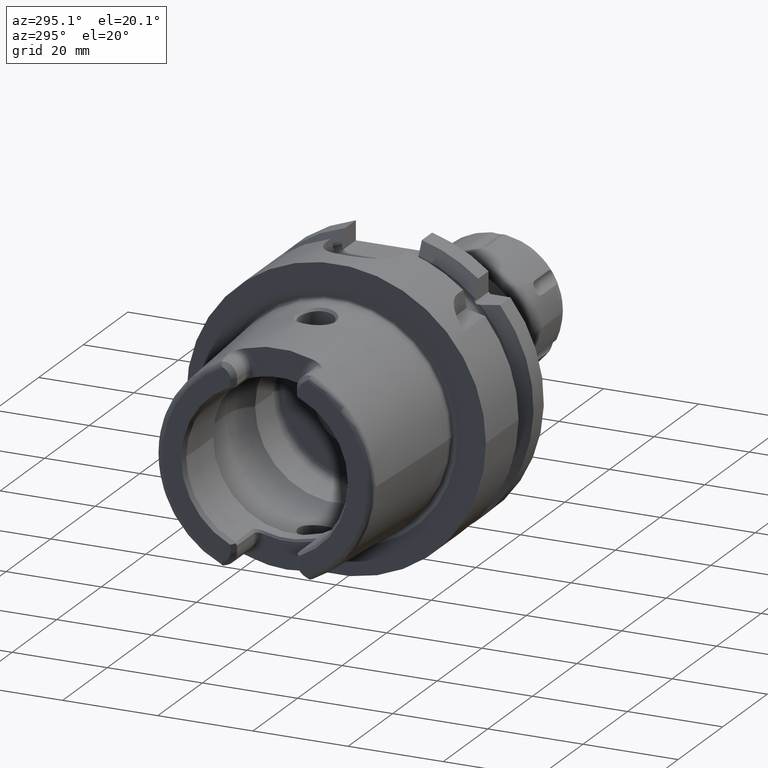
[diagram: clean part render]
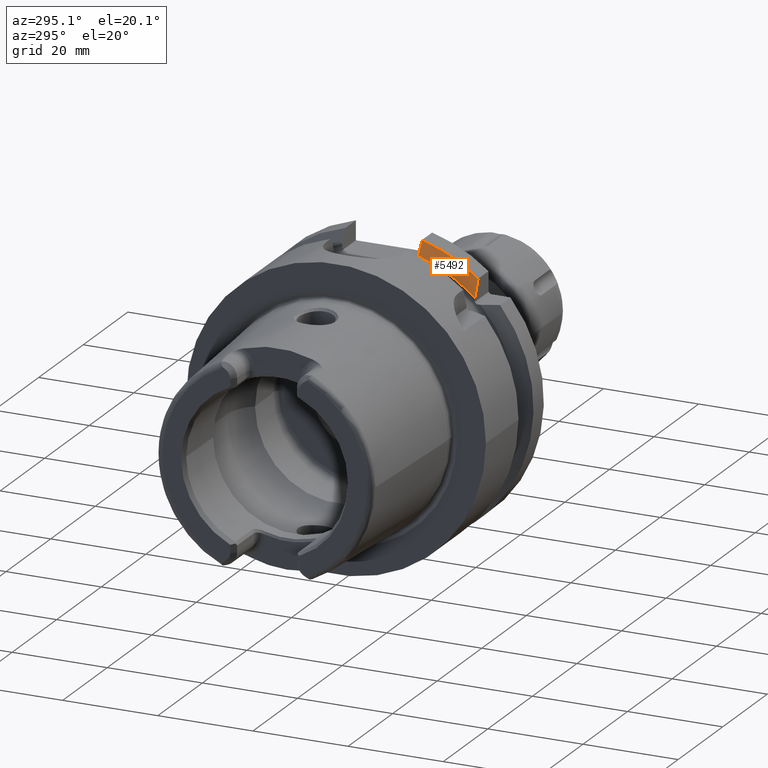
[diagram: same view with one face highlighted and labeled with its STEP entity id]
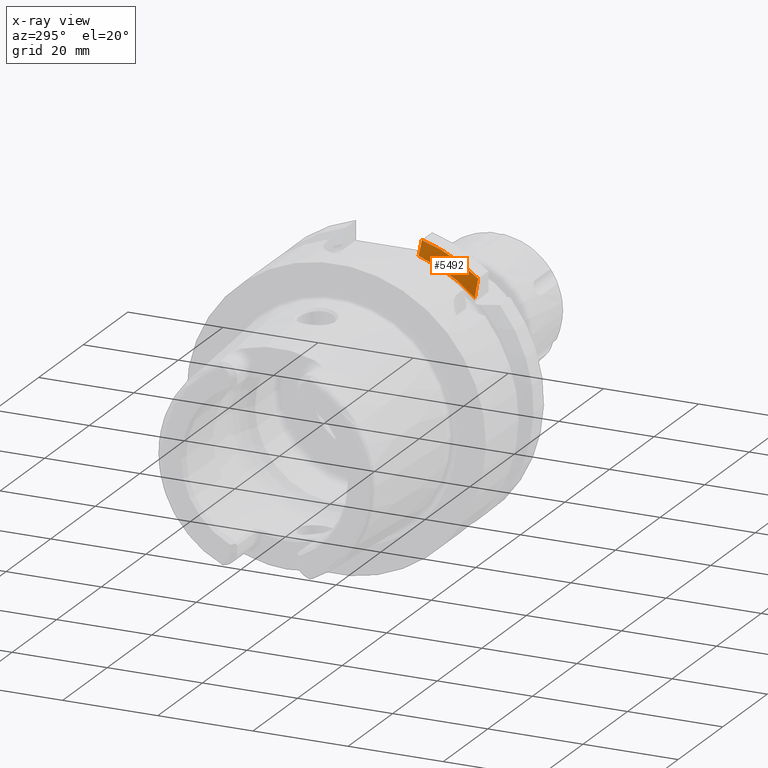
[diagram: x-ray of the same camera — body ghosted, the highlighted face saturated]
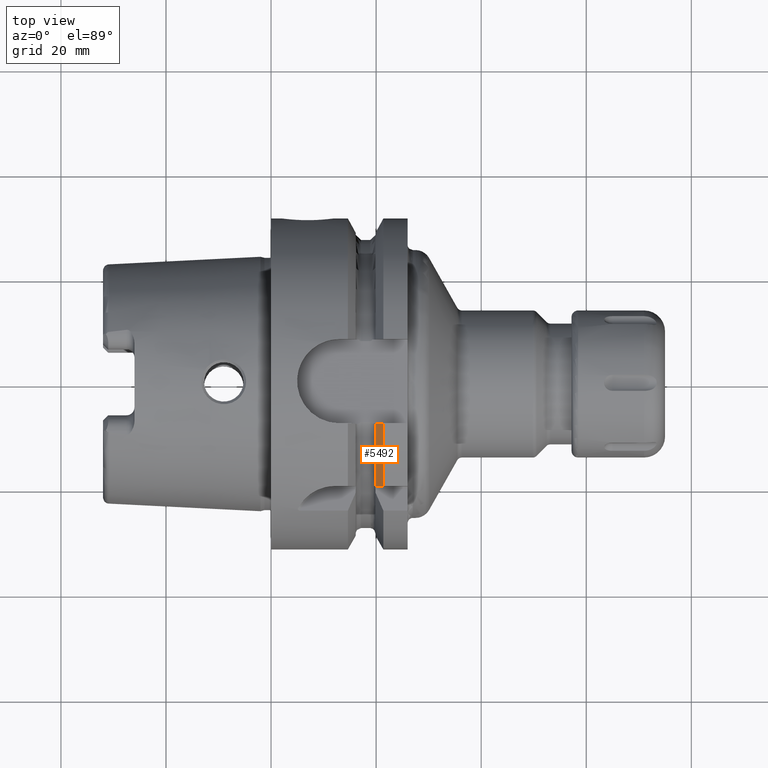
[diagram: same view with one face highlighted and labeled with its STEP entity id]
A machine part, auxiliary view. The second image highlights one B-rep face of the part: STEP entity #5492.
The next image is the same camera in x-ray: the body ghosted, the highlighted face saturated — about 0% of this face is hidden behind the body in this view.
A second angle (top view) of the same face is appended — the face is thin or edge-on in the first view.
In plain terms, the highlighted conical surface has half-angle 60 deg.
Its self-contained STEP definition (entity closure, byte-faithful):
#2015=CARTESIAN_POINT('',(2.137749907476E1,-1.985E1,2.445868966237E1));
#2016=CARTESIAN_POINT('',(2.119332414964E1,-1.985E1,2.404785365832E1));
#2017=CARTESIAN_POINT('',(2.083663783525E1,-1.985E1,2.324394677021E1));
#2018=CARTESIAN_POINT('',(2.033810786478E1,-1.985E1,2.209613517637E1));
#2019=CARTESIAN_POINT('',(2.002584660458E1,-1.985E1,2.136066809227E1));
#2020=CARTESIAN_POINT('',(1.9875E1,-1.985E1,2.100115501712E1));
#2022=CARTESIAN_POINT('',(1.9875E1,0.E0,0.E0));
#2023=DIRECTION('',(-1.E0,0.E0,0.E0));
#2024=DIRECTION('',(0.E0,-6.869083679290E-1,7.267440361428E-1));
#2025=AXIS2_PLACEMENT_3D('',#2022,#2023,#2024);
#2027=CARTESIAN_POINT('',(2.137749907476E1,-8.0175E0,3.046259499370E1));
#2028=CARTESIAN_POINT('',(2.120319177205E1,-8.0175E0,3.015040436151E1));
#2029=CARTESIAN_POINT('',(2.085948637578E1,-8.0175E0,2.953419360045E1));
#2030=CARTESIAN_POINT('',(2.035883321168E1,-8.0175E0,2.863469594323E1));
#2031=CARTESIAN_POINT('',(2.003465909713E1,-8.0175E0,2.805095548455E1));
#2032=CARTESIAN_POINT('',(1.9875E1,-8.0175E0,2.776311772483E1));
#2034=CARTESIAN_POINT('',(2.137749907476E1,0.E0,0.E0));
#2035=DIRECTION('',(1.E0,0.E0,0.E0));
#2036=DIRECTION('',(0.E0,-2.545238095238E-1,9.670665077364E-1));
#2037=AXIS2_PLACEMENT_3D('',#2034,#2035,#2036);
#3156=CARTESIAN_POINT('',(1.9875E1,-8.0175E0,2.776311772483E1));
#3157=VERTEX_POINT('',#3156);
#3160=VERTEX_POINT('',#2027);
#3202=CARTESIAN_POINT('',(2.137749907476E1,-1.985E1,2.445868966237E1));
#3204=VERTEX_POINT('',#3202);
#3218=CARTESIAN_POINT('',(1.9875E1,-1.985E1,2.100115501712E1));
#3220=VERTEX_POINT('',#3218);
#5479=CARTESIAN_POINT('',(2.062624953738E1,0.E0,0.E0));
#5480=DIRECTION('',(1.E0,0.E0,0.E0));
#5481=DIRECTION('',(0.E0,-1.E0,0.E0));
#5482=AXIS2_PLACEMENT_3D('',#5479,#5480,#5481);
#5483=CONICAL_SURFACE('',#5482,3.019879763210E1,6.E1);
#5485=ORIENTED_EDGE('',*,*,#5484,.T.);
#5487=ORIENTED_EDGE('',*,*,#5486,.T.);
#5488=ORIENTED_EDGE('',*,*,#5300,.F.);
#5489=ORIENTED_EDGE('',*,*,#5419,.T.);
#5490=EDGE_LOOP('',(#5485,#5487,#5488,#5489));
#5491=FACE_OUTER_BOUND('',#5490,.F.);
#5492=ADVANCED_FACE('',(#5491),#5483,.T.);
#2021=B_SPLINE_CURVE_WITH_KNOTS('',3,(#2015,#2016,#2017,#2018,#2019,#2020),
.UNSPECIFIED.,.F.,.F.,(4,1,1,4),(0.E0,3.333333333333E-1,6.666666666667E-1,1.E0),
.UNSPECIFIED.);
#2026=CIRCLE('',#2025,2.889759526419E1);
#2033=B_SPLINE_CURVE_WITH_KNOTS('',3,(#2027,#2028,#2029,#2030,#2031,#2032),
.UNSPECIFIED.,.F.,.F.,(4,1,1,4),(0.E0,3.333333333333E-1,6.666666666667E-1,1.E0),
.UNSPECIFIED.);
#2038=CIRCLE('',#2037,3.15E1);
#5300=EDGE_CURVE('',#3160,#3157,#2033,.T.);
#5419=EDGE_CURVE('',#3160,#3204,#2038,.T.);
#5484=EDGE_CURVE('',#3204,#3220,#2021,.T.);
#5486=EDGE_CURVE('',#3220,#3157,#2026,.T.);